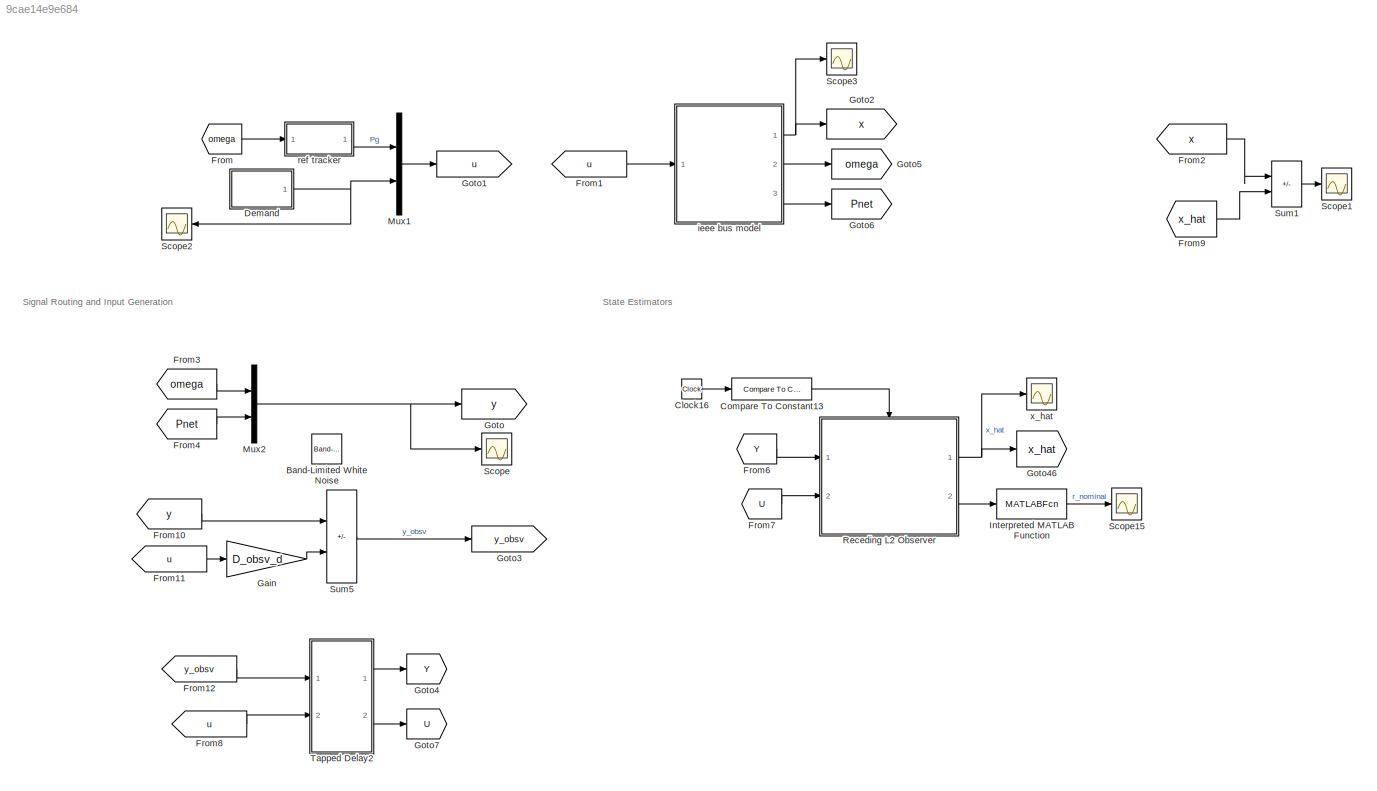
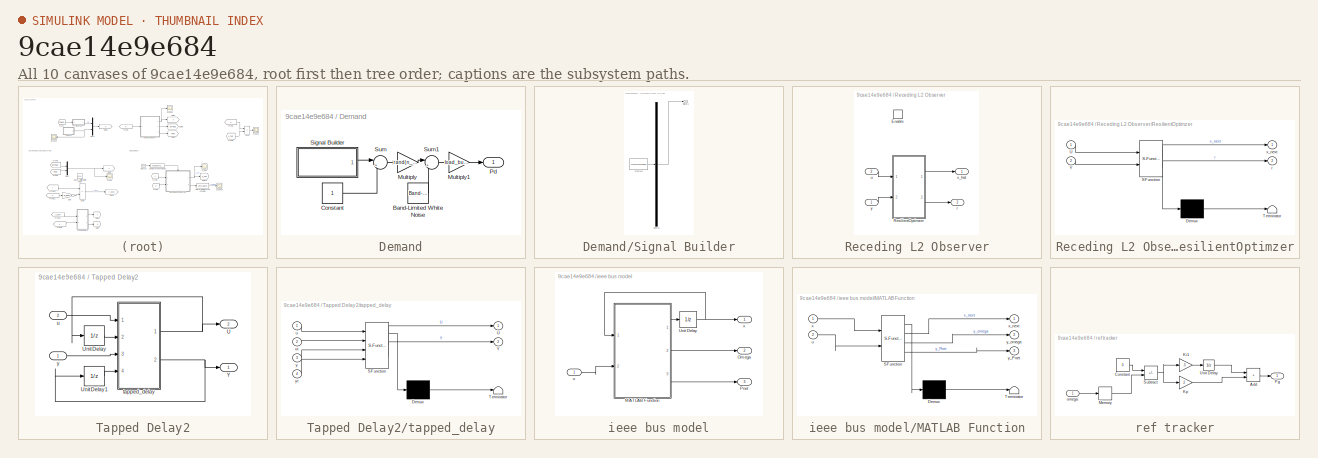
[diagram: thumbnail index - all 10 canvases of the model, root first then tree order]
MODEL slx_9cae14e9e684
KIND model
CONFIG AbsTol = auto
CONFIG EnableMultiTasking = off
CONFIG FixedStep = T_sample
CONFIG MaxStep = auto
CONFIG MinStep = auto
CONFIG RelTol = 1e-3
CONFIG SampleTimeConstraint = Unconstrained
CONFIG SolverName = FixedStepDiscrete
CONFIG StartTime = 0.0
CONFIG StopTime = T_final
BLOCK [Reference] Band-Limited White Noise  REF=simulink/Sources/Band-Limited
White Noise
  Commented = on
  Ports = [0, 1]
  SourceBlock = simulink/Sources/Band-Limited\nWhite Noise
  SourceProductBaseCode = SL
  SourceType = Band-Limited White Noise.
BLOCK [Clock] Clock16
BLOCK [Reference] Compare To Constant13  REF=simulink/Logic and Bit
Operations/Compare
To Constant
  Ports = [1, 1]
  SourceBlock = simulink/Logic and Bit\nOperations/Compare\nTo Constant
  SourceProductBaseCode = SL
  SourceType = Compare To Constant
BLOCK [SubSystem] Demand
  Ports = [0, 1]
  RequestExecContextInheritance = off
BLOCK [Reference] Demand/Band-Limited White Noise  REF=simulink/Sources/Band-Limited
White Noise
  Ports = [0, 1]
  SourceBlock = simulink/Sources/Band-Limited\nWhite Noise
  SourceProductBaseCode = SL
  SourceType = Band-Limited White Noise.
BLOCK [Constant] Demand/Constant
BLOCK [Gain] Demand/Multiply
  Gain = rand(n_bus,1)
BLOCK [Gain] Demand/Multiply1
  Gain = load_buses
BLOCK [Outport] Demand/Pd
BLOCK [SubSystem] Demand/Signal Builder
  ClipboardFcn = sigbuilder_block('clipboard');
  CloseFcn = sigbuilder_block('close');
  ContinueFcn = sigbuilder_block('continue');
  CopyFcn = sigbuilder_block('copy');
  DeleteFcn = sigbuilder_block('delete');
  LoadFcn = sigbuilder_block('load');
  MaskHideContents = on
  ModelCloseFcn = sigbuilder_block('modelClose');
  NameChangeFcn = sigbuilder_block('namechange');
  OpenFcn = sigbuilder_block('open',[439.2 145.2 550.2 399.9 ]);
  PauseFcn = sigbuilder_block('pause');
  Ports = [0, 1]
  PreSaveFcn = sigbuilder_block('preSave');
  RequestExecContextInheritance = off
  StartFcn = sigbuilder_block('start');
  StopFcn = sigbuilder_block('stop');
  Tag = STV Subsys
BLOCK [Demux] Demand/Signal Builder/Demux
  DisplayOption = none
  Outputs = 1
  Ports = [1, 1]
  Tag = STV Demux
BLOCK [FromWorkspace] Demand/Signal Builder/FromWs
  Tag = STV FromWs
  VariableName = tuvar
BLOCK [Outport] Demand/Signal Builder/Signal 1
  Tag = STV Outport
BLOCK [Sum] Demand/Sum
  Inputs = |+-
  Ports = [2, 1]
BLOCK [Sum] Demand/Sum1
  Inputs = |++
  Ports = [2, 1]
BLOCK [From] From
  GotoTag = omega
BLOCK [From] From1
  GotoTag = u
  TagVisibility = global
BLOCK [From] From10
  GotoTag = y
BLOCK [From] From11
  GotoTag = u
  TagVisibility = global
BLOCK [From] From12
  GotoTag = y_obsv
  TagVisibility = global
BLOCK [From] From2
  GotoTag = x
BLOCK [From] From3
  GotoTag = omega
BLOCK [From] From4
  GotoTag = Pnet
BLOCK [From] From6
  GotoTag = Y
BLOCK [From] From7
  GotoTag = U
BLOCK [From] From8
  GotoTag = u
  TagVisibility = global
BLOCK [From] From9
  GotoTag = x_hat
BLOCK [Gain] Gain
  Gain = D_obsv_d
  Multiplication = Matrix(K*u) (u vector)
BLOCK [Goto] Goto
  GotoTag = y
BLOCK [Goto] Goto1
  GotoTag = u
  TagVisibility = global
BLOCK [Goto] Goto2
  GotoTag = x
BLOCK [Goto] Goto3
  GotoTag = y_obsv
  TagVisibility = global
BLOCK [Goto] Goto4
  GotoTag = Y
BLOCK [Goto] Goto46
  GotoTag = x_hat
BLOCK [Goto] Goto5
  GotoTag = omega
BLOCK [Goto] Goto6
  GotoTag = Pnet
BLOCK [Goto] Goto7
  GotoTag = U
BLOCK [MATLABFcn] Interpreted MATLAB Function
  MATLABFcn = norm(u)
  Ports = [1, 1]
BLOCK [Mux] Mux1
  DisplayOption = bar
  Inputs = 2
  Ports = [2, 1]
BLOCK [Mux] Mux2
  DisplayOption = bar
  Inputs = 2
  Ports = [2, 1]
BLOCK [SubSystem] Receding L2 Observer
  Ports = [2, 2, 1]
  RequestExecContextInheritance = off
BLOCK [EnablePort] Receding L2 Observer/Enable
  Ports = []
BLOCK [SubSystem] Receding L2 Observer/ResilientOptimzer
  ErrorFcn = Stateflow.Translate.translate
  PermitHierarchicalResolution = ExplicitOnly
  Ports = [2, 2]
  RequestExecContextInheritance = off
  SFBlockType = MATLAB Function
  TreatAsAtomicUnit = on
BLOCK [Demux] Receding L2 Observer/ResilientOptimzer/ Demux 
  Outputs = 1
  Ports = [1, 1]
BLOCK [S-Function] Receding L2 Observer/ResilientOptimzer/ SFunction 
  EnableBusSupport = on
  FunctionName = sf_sfun
  Parameters = H0_perp_full,H1_full,Lu,Ly,n_states
  PortCounts = [2 3]
  Ports = [2, 3]
  SFcnIsStateOwnerBlock = off
  SFunctionDeploymentMode = off
  Tag = Stateflow S-Function 10
BLOCK [Terminator] Receding L2 Observer/ResilientOptimzer/ Terminator 
BLOCK [Inport] Receding L2 Observer/ResilientOptimzer/U
BLOCK [Inport] Receding L2 Observer/ResilientOptimzer/Y
  Port = 2
BLOCK [Outport] Receding L2 Observer/ResilientOptimzer/r
  Port = 2
BLOCK [Outport] Receding L2 Observer/ResilientOptimzer/x_next
BLOCK [Outport] Receding L2 Observer/r
  Port = 2
BLOCK [Inport] Receding L2 Observer/u
  Port = 2
BLOCK [Outport] Receding L2 Observer/x_hat
BLOCK [Inport] Receding L2 Observer/y
BLOCK [Scope] Scope
  Floating = off
  NumInputPorts = 1
  Ports = [1]
  ScopeSpecificationString = Simulink.scopes.TimeScopeBlockCfg('CurrentConfiguration', extmgr.ConfigurationSet(extmgr.Configuration('Core','General UI',true),extmgr.Configuration('Core','Source UI',true),extmgr.Configuration('Sources','WiredSimulink',true),extmgr.Configuration('Visuals','Time Domain',true,'SerializedDisplays',{struct('MinYLimReal','-10.50357','MaxYLimReal','10.25697','YLabelReal','','MinYLimMag','0.00000','Ma...<+1638ch>
BLOCK [Scope] Scope1
  Floating = off
  NumInputPorts = 1
  Ports = [1]
  ScopeSpecificationString = Simulink.scopes.TimeScopeBlockCfg('CurrentConfiguration', extmgr.ConfigurationSet(extmgr.Configuration('Core','General UI',true),extmgr.Configuration('Core','Source UI',true),extmgr.Configuration('Sources','WiredSimulink',true,'DataLoggingVariableName','ScopeData2'),extmgr.Configuration('Visuals','Time Domain',true,'SerializedDisplays',{struct('MinYLimReal','-0.18465','MaxYLimReal','0.17946','YLab...<+1550ch>
BLOCK [Scope] Scope15
  Floating = off
  NumInputPorts = 1
  Ports = [1]
  ScopeSpecificationString = Simulink.scopes.TimeScopeBlockCfg('CurrentConfiguration', extmgr.ConfigurationSet(extmgr.Configuration('Core','General UI',true),extmgr.Configuration('Core','Source UI',true),extmgr.Configuration('Sources','WiredSimulink',true,'DataLoggingVariableName','ScopeData3'),extmgr.Configuration('Visuals','Time Domain',true,'SerializedDisplays',{struct('MinYLimReal','-0.03537','MaxYLimReal','0.3183','YLabe...<+1418ch>
BLOCK [Scope] Scope2
  Floating = off
  NumInputPorts = 1
  Ports = [1]
  ScopeSpecificationString = Simulink.scopes.TimeScopeBlockCfg('CurrentConfiguration', extmgr.ConfigurationSet(extmgr.Configuration('Core','General UI',true),extmgr.Configuration('Core','Source UI',true),extmgr.Configuration('Sources','WiredSimulink',true,'DataLoggingVariableName','ScopeData1'),extmgr.Configuration('Visuals','Time Domain',true,'SerializedDisplays',{struct('MinYLimReal','-0.24435','MaxYLimReal','0.2444','YLabe...<+1546ch>
BLOCK [Scope] Scope3
  Floating = off
  NumInputPorts = 1
  Ports = [1]
  ScopeSpecificationString = Simulink.scopes.TimeScopeBlockCfg('CurrentConfiguration', extmgr.ConfigurationSet(extmgr.Configuration('Core','General UI',true),extmgr.Configuration('Core','Source UI',true),extmgr.Configuration('Sources','WiredSimulink',true,'DataLoggingVariableName','ScopeData5'),extmgr.Configuration('Visuals','Time Domain',true,'SerializedDisplays',{struct('MinYLimReal','-0.07995','MaxYLimReal','0.05964','YLab...<+1669ch>
BLOCK [Sum] Sum1
  IconShape = rectangular
  Inputs = |+-
  Ports = [2, 1]
BLOCK [Sum] Sum5
  IconShape = rectangular
  Inputs = +-
  Ports = [2, 1]
BLOCK [SubSystem] Tapped Delay2
  Ports = [2, 2]
  RequestExecContextInheritance = off
BLOCK [Outport] Tapped Delay2/U
  Port = 2
BLOCK [UnitDelay] Tapped Delay2/Unit Delay
  HasFrameUpgradeWarning = on
  InitialCondition = U0
  SampleTime = -1
BLOCK [UnitDelay] Tapped Delay2/Unit Delay1
  HasFrameUpgradeWarning = on
  InitialCondition = Y0
  SampleTime = -1
BLOCK [Outport] Tapped Delay2/Y
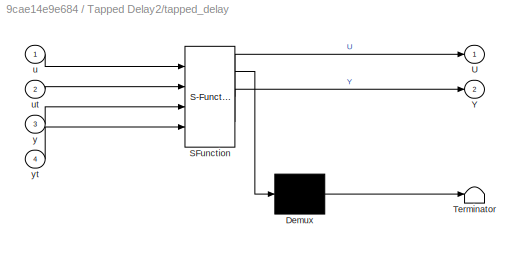
BLOCK [SubSystem] Tapped Delay2/tapped_delay
  ErrorFcn = Stateflow.Translate.translate
  PermitHierarchicalResolution = ExplicitOnly
  Ports = [4, 2]
  RequestExecContextInheritance = off
  SFBlockType = MATLAB Function
  TreatAsAtomicUnit = on
BLOCK [Demux] Tapped Delay2/tapped_delay/ Demux 
  Outputs = 1
  Ports = [1, 1]
BLOCK [S-Function] Tapped Delay2/tapped_delay/ SFunction 
  EnableBusSupport = on
  FunctionName = sf_sfun
  PortCounts = [4 3]
  Ports = [4, 3]
  SFcnIsStateOwnerBlock = off
  SFunctionDeploymentMode = off
  Tag = Stateflow S-Function 1
BLOCK [Terminator] Tapped Delay2/tapped_delay/ Terminator 
BLOCK [Outport] Tapped Delay2/tapped_delay/U
BLOCK [Outport] Tapped Delay2/tapped_delay/Y
  Port = 2
BLOCK [Inport] Tapped Delay2/tapped_delay/u
BLOCK [Inport] Tapped Delay2/tapped_delay/ut
  Port = 2
BLOCK [Inport] Tapped Delay2/tapped_delay/y
  Port = 3
BLOCK [Inport] Tapped Delay2/tapped_delay/yt
  Port = 4
BLOCK [Inport] Tapped Delay2/u
  Port = 2
BLOCK [Inport] Tapped Delay2/y
BLOCK [SubSystem] ieee bus model
  Ports = [1, 3]
  RequestExecContextInheritance = off
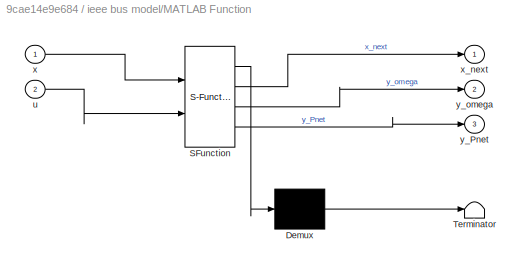
BLOCK [SubSystem] ieee bus model/MATLAB Function
  ErrorFcn = Stateflow.Translate.translate
  PermitHierarchicalResolution = ExplicitOnly
  Ports = [2, 3]
  RequestExecContextInheritance = off
  SFBlockType = MATLAB Function
  TreatAsAtomicUnit = on
BLOCK [Demux] ieee bus model/MATLAB Function/ Demux 
  Outputs = 1
  Ports = [1, 1]
BLOCK [S-Function] ieee bus model/MATLAB Function/ SFunction 
  EnableBusSupport = on
  FunctionName = sf_sfun
  Parameters = A_bar_d,B_bar_d,C_obsv_d,D_obsv_d,n_bus,n_gen
  PortCounts = [2 4]
  Ports = [2, 4]
  SFcnIsStateOwnerBlock = off
  SFunctionDeploymentMode = off
  Tag = Stateflow S-Function 2
BLOCK [Terminator] ieee bus model/MATLAB Function/ Terminator 
BLOCK [Inport] ieee bus model/MATLAB Function/u
  Port = 2
BLOCK [Inport] ieee bus model/MATLAB Function/x
BLOCK [Outport] ieee bus model/MATLAB Function/x_next
BLOCK [Outport] ieee bus model/MATLAB Function/y_Pnet
  Port = 3
BLOCK [Outport] ieee bus model/MATLAB Function/y_omega
  Port = 2
BLOCK [Outport] ieee bus model/Omega
  Port = 2
BLOCK [Outport] ieee bus model/Pnet
  Port = 3
BLOCK [UnitDelay] ieee bus model/Unit Delay
  HasFrameUpgradeWarning = on
  InitialCondition = x0
  SampleTime = -1
BLOCK [Inport] ieee bus model/u
BLOCK [Outport] ieee bus model/x
BLOCK [SubSystem] ref tracker
  Ports = [1, 1]
  RequestExecContextInheritance = off
BLOCK [Sum] ref tracker/Add
  IconShape = rectangular
  Ports = [2, 1]
BLOCK [Constant] ref tracker/Constant
  Value = 0
BLOCK [Gain] ref tracker/Ki1
  Gain = .3
BLOCK [Gain] ref tracker/Kp
  Gain = 2
BLOCK [Memory] ref tracker/Memory
  InitialCondition = zeros(n_gen,1)
BLOCK [Outport] ref tracker/Pg
BLOCK [Sum] ref tracker/Subtract
  IconShape = rectangular
  Inputs = +-
  Ports = [2, 1]
BLOCK [UnitDelay] ref tracker/Unit Delay
  HasFrameUpgradeWarning = on
  InitialCondition = zeros(n_gen,1)
  SampleTime = -1
BLOCK [Inport] ref tracker/omega
BLOCK [Scope] x_hat
  Floating = off
  NumInputPorts = 1
  Ports = [1]
  ScopeSpecificationString = Simulink.scopes.TimeScopeBlockCfg('CurrentConfiguration', extmgr.ConfigurationSet(extmgr.Configuration('Core','General UI',true),extmgr.Configuration('Core','Source UI',true),extmgr.Configuration('Sources','WiredSimulink',true,'DataLoggingVariableName','ScopeData4'),extmgr.Configuration('Visuals','Time Domain',true,'SerializedDisplays',{struct('MinYLimReal','-0.19759','MaxYLimReal','0.19927','YLab...<+1560ch>
ANNOTATION (root): Signal Routing and Input Generation
ANNOTATION (root): State Estimators
LINE Clock16:1 -> Compare To Constant13:1
LINE Compare To Constant13:1 -> Receding L2 Observer:enable
LINE Demand/Band-Limited White Noise:1 -> Demand/Sum1:2
LINE Demand/Constant:1 -> Demand/Sum:2
LINE Demand/Multiply1:1 -> Demand/Pd:1
LINE Demand/Multiply:1 -> Demand/Sum1:1
LINE Demand/Signal Builder:1 -> Demand/Sum:1
LINE Demand/Sum1:1 -> Demand/Multiply1:1
LINE Demand/Sum:1 -> Demand/Multiply:1
NET Demand:1 -> Mux1:2, Scope2:1
LINE From10:1 -> Sum5:1
LINE From11:1 -> Gain:1
LINE From12:1 -> Tapped Delay2:1
LINE From1:1 -> ieee bus model:1
LINE From2:1 -> Sum1:1
LINE From3:1 -> Mux2:1
LINE From4:1 -> Mux2:2
LINE From6:1 -> Receding L2 Observer:1
LINE From7:1 -> Receding L2 Observer:2
LINE From8:1 -> Tapped Delay2:2
LINE From9:1 -> Sum1:2
LINE From:1 -> ref tracker:1
LINE Gain:1 -> Sum5:2
LINE Interpreted MATLAB Function:1 -> Scope15:1
LINE Mux1:1 -> Goto1:1
NET Mux2:1 -> Goto:1, Scope:1
LINE Receding L2 Observer/ResilientOptimzer:1 -> Receding L2 Observer/x_hat:1
LINE Receding L2 Observer/ResilientOptimzer:2 -> Receding L2 Observer/r:1
LINE Receding L2 Observer/u:1 -> Receding L2 Observer/ResilientOptimzer:1
LINE Receding L2 Observer/y:1 -> Receding L2 Observer/ResilientOptimzer:2
NET Receding L2 Observer:1 -> Goto46:1, x_hat:1
LINE Receding L2 Observer:2 -> Interpreted MATLAB Function:1
LINE Sum1:1 -> Scope1:1
LINE Sum5:1 -> Goto3:1
LINE Tapped Delay2/Unit Delay1:1 -> Tapped Delay2/tapped_delay:4
LINE Tapped Delay2/Unit Delay:1 -> Tapped Delay2/tapped_delay:2
NET Tapped Delay2/tapped_delay:1 -> Tapped Delay2/U:1, Tapped Delay2/Unit Delay:1
NET Tapped Delay2/tapped_delay:2 -> Tapped Delay2/Unit Delay1:1, Tapped Delay2/Y:1
LINE Tapped Delay2/u:1 -> Tapped Delay2/tapped_delay:1
LINE Tapped Delay2/y:1 -> Tapped Delay2/tapped_delay:3
LINE Tapped Delay2:1 -> Goto4:1
LINE Tapped Delay2:2 -> Goto7:1
LINE ieee bus model/MATLAB Function:1 -> ieee bus model/Unit Delay:1
LINE ieee bus model/MATLAB Function:2 -> ieee bus model/Omega:1
LINE ieee bus model/MATLAB Function:3 -> ieee bus model/Pnet:1
NET ieee bus model/Unit Delay:1 -> ieee bus model/MATLAB Function:1, ieee bus model/x:1
LINE ieee bus model/u:1 -> ieee bus model/MATLAB Function:2
NET ieee bus model:1 -> Goto2:1, Scope3:1
LINE ieee bus model:2 -> Goto5:1
LINE ieee bus model:3 -> Goto6:1
LINE ref tracker/Add:1 -> ref tracker/Pg:1
LINE ref tracker/Constant:1 -> ref tracker/Subtract:1
LINE ref tracker/Ki1:1 -> ref tracker/Unit Delay:1
LINE ref tracker/Kp:1 -> ref tracker/Add:2
LINE ref tracker/Memory:1 -> ref tracker/Subtract:2
NET ref tracker/Subtract:1 -> ref tracker/Ki1:1, ref tracker/Kp:1
LINE ref tracker/Unit Delay:1 -> ref tracker/Add:1
LINE ref tracker/omega:1 -> ref tracker/Memory:1
LINE ref tracker:1 -> Mux1:1
note: NET lines group one-source signal fan-out (src -> all destinations, sorted); 1:1 wires keep LINE
CHART Tapped Delay2/tapped_delay states=1 transitions=1
  STATE_LABEL 'eML_blk_kernel()'
  STATE_LABEL 'SCRIPT:\nfunction [U,Y] = fcn(u,ut,y,yt)\n%% tapped_delay_array\n% shift columns from tapped matrix to the left and appends most recent\n% vector to the last column\n%%% input\nut(:,1:end-1) = ut(:,2:end);\nut(:,end) = u;\nU = ut;\n%%% output\nyt(:,1:end-1) = yt(:,2:end);\nyt(:,end) = y;\nY = yt;'
CHART ieee bus model/MATLAB Function states=1 transitions=1
  STATE_LABEL 'eML_blk_kernel()'
  STATE_LABEL 'SCRIPT:\nfunction [x_next,y_omega,y_Pnet] = fcn(x,u,A_bar_d,C_obsv_d,B_bar_d,D_obsv_d,n_gen, n_bus)\n% Discrete state-space model for system\n\nx_next = A_bar_d*x + B_bar_d*u;\n\ny = C_obsv_d*x + D_obsv_d*u;\n\ny_omega = y(1:n_gen);\ny_Pnet = y(n_gen+1:n_bus+n_gen);'
CHART Receding L2 Observer/ResilientOptimzer states=1 transitions=1
  STATE_LABEL 'eML_blk_kernel()'
  STATE_LABEL 'SCRIPT:\nfunction [x_next,r]  = fcn(U,Y, Ly, Lu,H0_perp_full, H1_full,n_states)\n\n\nu_local = U(:,1:end-1);\n% vectorized\nu = u_local(:);\ny = Y(:);\n\nx_next = zeros(n_states,1);\nx_next(:) = Ly*y + Lu*u;\n\nr = H0_perp_full*(y-H1_full*u);'
CHART  states=0 transitions=0
CHART  states=0 transitions=0
CHART  states=0 transitions=0
